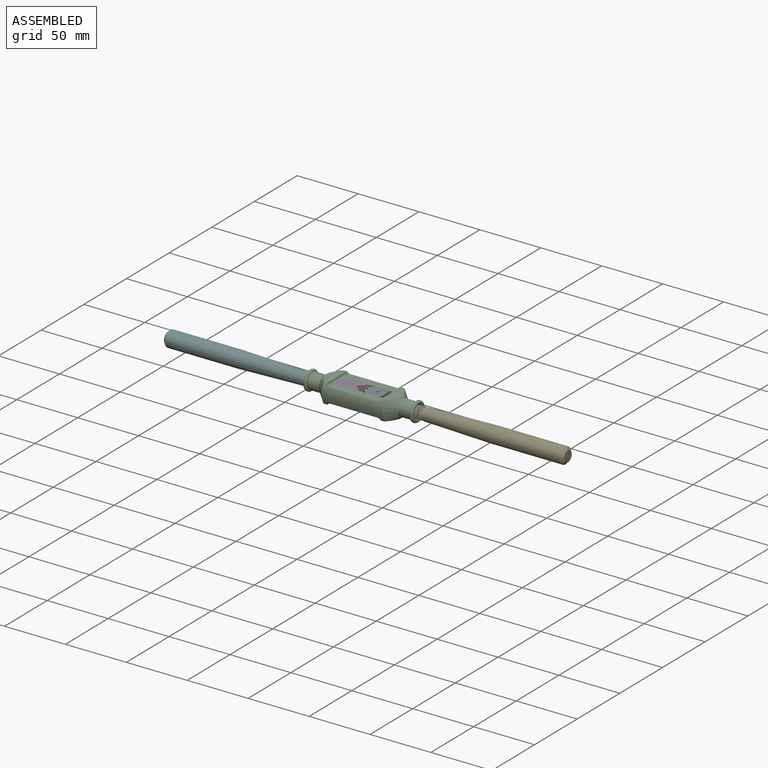
[diagram: assembled view]
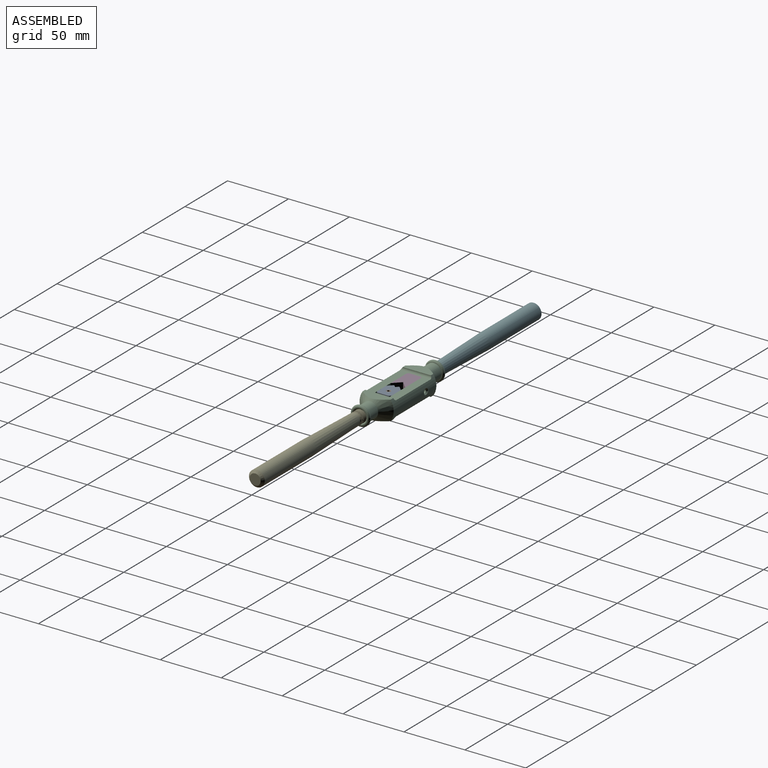
[diagram: assembled view, second angle]
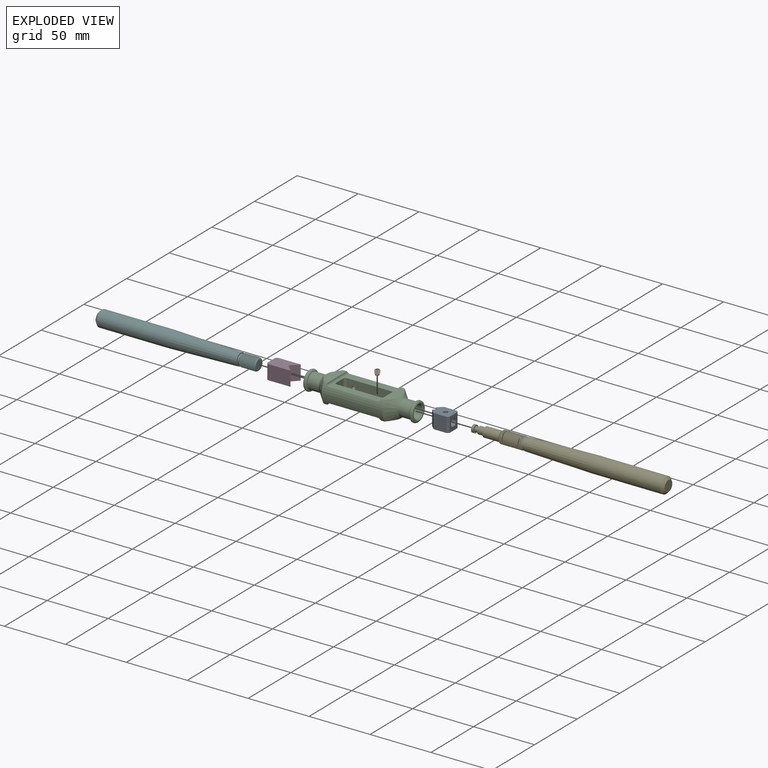
[diagram: exploded view]
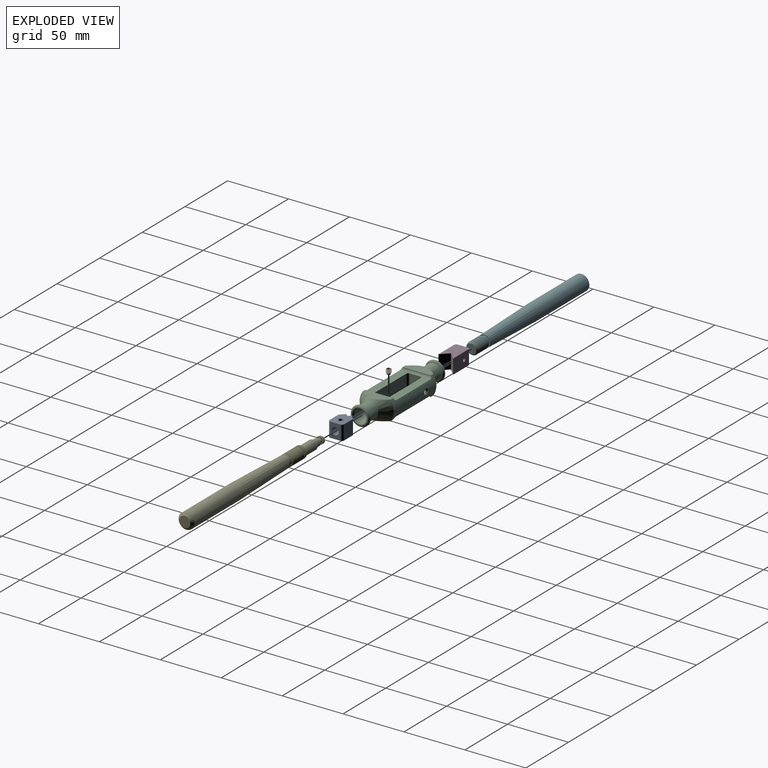
[diagram: exploded view, second angle]
ASSEMBLY  parts=6 mates=6
PART A: 15 faces, bbox 16.1x12x12 mm
  f0: cylinder r=3mm len=10mm, axis (1,0,0), area 178.4mm2, adj f4,f10,f11
  f1: plane 12x2.12mm, normal (-0.71,0.71,0), area 36mm2, adj f2,f7,f8,f9
  f2: plane 12x3.88mm, normal (-0.71,-0.71,0), area 65.8mm2, adj f1,f3,f8,f9
  f3: plane 12x10.24mm, normal (0,-1,0), area 122.9mm2, adj f2,f8,f9,f13
  f4: plane 12x8mm, normal (1,0,0), area 67.7mm2, adj f0,f8,f9,f13,f14
  f5: plane 12x10.24mm, normal (0,1,0), area 122.9mm2, adj f6,f8,f9,f14
  f6: plane 12x3.88mm, normal (-0.71,0.71,0), area 65.8mm2, adj f5,f7,f8,f9
  f7: plane 12x2.12mm, normal (-0.71,-0.71,0), area 36mm2, adj f1,f6,f8,f9
  f8: plane 16.12x12mm, normal (0,0,1), area 161.4mm2, adj f1,f2,f3,f4,f5,f6,f7,f12
  f9: plane 16.12x12mm, normal (0,0,-1), area 172.2mm2, adj f1,f2,f3,f4,f5,f6,f7,f13
  f10: cone r=0mm half-angle=59deg, axis (1,0,0), area 33mm2, adj f0
  f11: cylinder r=1.75mm len=3.5mm, axis (0,0,1), area 34.9mm2, adj f0,f12
  f12: cone r=1.75mm half-angle=45deg, axis (0,0,1), area 1.6mm2, adj f8,f11
  f13: cylinder r=2mm len=12mm, axis (0,0,1), area 37.7mm2, adj f3,f4,f8,f9
  f14: cylinder r=2mm len=12mm, axis (0,0,-1), area 37.7mm2, adj f4,f5,f8,f9
PART B: 17 faces, bbox 4x4x4.6 mm
  f0: plane 3.4x3.4mm, normal (-1,0,0), area 5.6mm2, adj f6,f10,f11,f12,f13,f14,f15
  f1: plane 3x3mm, normal (1,0,0), area 7.1mm2, adj f2
  f2: cylinder r=1.5mm len=3mm, axis (-1,0,0), area 8.5mm2, adj f1,f3
  f3: cone r=1.35mm half-angle=56.3deg, axis (1,0,0), area 1.6mm2, adj f2,f4
  f4: cone r=2mm half-angle=72.9deg, axis (-1,0,0), area 5.4mm2, adj f3,f5,f8,f9
  f5: cylinder r=2mm len=4mm, axis (-1,0,0), area -0.2mm2, adj f4,f6,f7,f8,f9
  f6: cone r=1.7mm half-angle=45deg, axis (1,0,0), area 3.5mm2, adj f0,f5,f7,f9
  f7: plane 0.29x0.23mm, normal (0,0,-1), area 0mm2, adj f5,f6,f8,f9
  f8: bspline ~4.62x4mm, area 29.2mm2, adj f4,f5,f7,f9
  f9: bspline ~4.62x4mm, area 29.9mm2, adj f4,f5,f6,f7,f8
  f10: plane 1.5x1mm, normal (0,-0.5,-0.87), area 1.7mm2, adj f0,f11,f15,f16
  f11: plane 1.5x1.15mm, normal (0,-1,0), area 1.7mm2, adj f0,f10,f12,f16
  f12: plane 1.5x1mm, normal (0,-0.5,0.86), area 1.7mm2, adj f0,f11,f13,f16
  f13: plane 1.5x1mm, normal (0,0.5,0.87), area 1.7mm2, adj f0,f12,f14,f16
  f14: plane 1.5x1.15mm, normal (0,1,0), area 1.7mm2, adj f0,f13,f15,f16
  f15: plane 1.5x1mm, normal (0,0.5,-0.86), area 1.7mm2, adj f0,f10,f14,f16
  f16: plane 2.31x2.01mm, normal (-1,0,0), area 3.5mm2, adj f10,f11,f12,f13,f14,f15
PART C: 41 faces, bbox 90x28x28 mm
  f0: plane 8x6mm, normal (-1,0,0), area 22.9mm2, adj f21,f25,f38,f39
  f1: cylinder r=14mm len=50mm, axis (1,0,0), area 632mm2, adj f2,f3,f9,f10,f11,f13,f25,f27
  f2: plane 22.99x9.01mm, normal (0,0,-1), area 155.6mm2, adj f1,f12,f13,f28
  f3: plane 22.99x9.01mm, normal (0,0,1), area 155.6mm2, adj f1,f11,f12,f32
  f4: plane 12x8mm, normal (1,0,0), area 96mm2, adj f28,f29,f37,f40
  f5: plane 36x12mm, normal (0,1,0), area 432mm2, adj f26,f30,f37,f38
  f6: plane 8x6mm, normal (-1,0,0), area 22.9mm2, adj f21,f32,f38,f39
  f7: plane 36x12mm, normal (0,-1,0), area 424.9mm2, adj f27,f31,f33,f39,f40
  f8: cone r=0mm half-angle=59deg, axis (1,0,0), area 33mm2, adj f20,f21
  f9: plane 22.99x9.01mm, normal (0,0,-1), area 155.6mm2, adj f1,f11,f12,f25
  f10: plane 22.99x9.01mm, normal (0,0,1), area 155.6mm2, adj f1,f12,f13,f29
  f11: cone r=14mm half-angle=45deg, axis (-1,0,0), area 409.4mm2, adj f1,f3,f9,f12,f17
  f12: cylinder r=14mm len=50mm, axis (1,0,0), area 651.7mm2, adj f2,f3,f9,f10,f11,f13,f25,f26
  f13: cone r=14mm half-angle=45deg, axis (1,0,0), area 409.5mm2, adj f1,f2,f10,f12,f18
  f14: plane 13x13mm, normal (-1,0,0), area 54.2mm2, adj f19,f23
  f15: plane 13x13mm, normal (1,0,0), area 19.6mm2, adj f16,f22
  f16: torus R=6.5mm, axis (1,0,0), area 220.7mm2, adj f15,f17
  f17: cylinder r=6.5mm len=13mm, axis (1,0,0), area 388mm2, adj f11,f16
  f18: cylinder r=6.5mm len=13mm, axis (1,0,0), area 388mm2, adj f13,f19
  f19: torus R=6.5mm, axis (1,0,0), area 220.7mm2, adj f14,f18
  f20: cylinder r=5mm len=19mm, axis (1,0,0), area 596.9mm2, adj f8,f22
  f21: cylinder r=4mm len=8mm, axis (1,0,0), area 110.6mm2, adj f0,f6,f8
  f22: cone r=5mm half-angle=45deg, axis (1,0,0), area 48.9mm2, adj f15,f20
  f23: cylinder r=5mm len=20mm, axis (-1,0,0), area 628.3mm2, adj f14,f24
  f24: cone r=0mm half-angle=59deg, axis (-1,0,0), area 91.6mm2, adj f23
  f25: cylinder r=2mm len=25.3mm, axis (0,1,0), area 77mm2, adj f0,f1,f9,f12,f26,f27
  f26: plane 40x8.65mm, normal (0,0,-1), area 267.7mm2, adj f5,f12,f25,f28,f37,f38
  f27: plane 40x8.65mm, normal (0,0,-1), area 267.7mm2, adj f1,f7,f25,f28,f39,f40
  f28: cylinder r=2mm len=25.3mm, axis (0,1,0), area 77mm2, adj f1,f2,f4,f12,f26,f27
  f29: cylinder r=2mm len=25.3mm, axis (0,1,0), area 77mm2, adj f1,f4,f10,f12,f30,f31
  f30: plane 40x8.65mm, normal (0,0,1), area 267.7mm2, adj f5,f12,f29,f32,f37,f38
  f31: plane 40x8.65mm, normal (0,0,1), area 267.7mm2, adj f1,f7,f29,f32,f39,f40
  f32: cylinder r=2mm len=25.3mm, axis (0,1,0), area 77mm2, adj f1,f3,f6,f12,f30,f31
  f33: cylinder r=1.5mm len=6.78mm, axis (0,1,0), area 63.9mm2, adj f7,f36
  f34: cylinder r=2.5mm len=5mm, axis (0,1,0), area 0.9mm2, adj f1,f36
  f35: cylinder r=2.5mm len=5mm, axis (0,1,0), area 0.9mm2, adj f1,f36
  f36: cone r=1.5mm half-angle=45deg, axis (0,1,0), area 17.8mm2, adj f33,f34,f35
  f37: cylinder r=2mm len=12mm, axis (0,0,1), area 37.7mm2, adj f4,f5,f26,f30
  f38: cylinder r=2mm len=12mm, axis (0,0,-1), area 37.7mm2, adj f0,f5,f6,f26,f30
  f39: cylinder r=2mm len=12mm, axis (0,0,1), area 37.7mm2, adj f0,f6,f7,f27,f31
  f40: cylinder r=2mm len=12mm, axis (0,0,-1), area 37.7mm2, adj f4,f7,f27,f31
PART D: 11 faces, bbox 20x12x12 mm
  f0: plane 12x6mm, normal (0.71,-0.71,0), area 101.8mm2, adj f1,f4,f5,f6
  f1: plane 18x12mm, normal (0,1,0), area 208.9mm2, adj f0,f5,f6,f7,f9
  f2: plane 12x8mm, normal (-1,0,0), area 96mm2, adj f5,f6,f9,f10
  f3: plane 18x12mm, normal (0,-1,0), area 216mm2, adj f4,f5,f6,f10
  f4: plane 12x6mm, normal (0.71,0.71,0), area 101.8mm2, adj f0,f3,f5,f6
  f5: plane 20x12mm, normal (0,0,1), area 202.3mm2, adj f0,f1,f2,f3,f4,f9,f10
  f6: plane 20x12mm, normal (0,0,-1), area 202.3mm2, adj f0,f1,f2,f3,f4,f9,f10
  f7: cylinder r=1.5mm len=5mm, axis (0,1,0), area 47.1mm2, adj f1,f8
  f8: cone r=0mm half-angle=59deg, axis (0,1,0), area 8.2mm2, adj f7
  f9: cylinder r=2mm len=12mm, axis (0,0,1), area 37.7mm2, adj f1,f2,f5,f6
  f10: cylinder r=2mm len=12mm, axis (0,0,-1), area 37.7mm2, adj f2,f3,f5,f6
PART E: 21 faces, bbox 161.8x13x13 mm
  f0: plane 8x8mm, normal (-1,0,0), area 22mm2, adj f1,f13
  f1: cylinder r=3mm len=6mm, axis (1,0,0), area 94.2mm2, adj f0,f2
  f2: plane 6x6mm, normal (-1,0,0), area 15.7mm2, adj f1,f3
  f3: cylinder r=2mm len=4mm, axis (1,0,0), area 37.7mm2, adj f2,f4
  f4: plane 6x6mm, normal (1,0,0), area 15.7mm2, adj f3,f5
  f5: cylinder r=3mm len=6mm, axis (1,0,0), area 37.7mm2, adj f4,f6
  f6: cone r=0mm half-angle=59deg, axis (1,0,0), area 33mm2, adj f5
  f7: plane 9x9mm, normal (1,0,0), area 63.6mm2, adj f14
  f8: cylinder r=6.5mm len=58mm, axis (1,0,0), area 2368.8mm2, adj f9,f14
  f9: cone r=5mm half-angle=1.5deg, axis (1,0,0), area 2023.9mm2, adj f8,f10
  f10: plane 10x10mm, normal (-1,0,0), area 24.1mm2, adj f9,f11
  f11: cylinder r=4.16mm len=8.33mm, axis (1,0,0), area 30.4mm2, adj f10,f15
  f12: cylinder r=5mm len=18mm, axis (1,0,0), area 68.4mm2, adj f15,f16,f19,f20
  f13: cylinder r=4mm len=13mm, axis (1,0,0), area 326.7mm2, adj f0,f17
  f14: cone r=4.5mm half-angle=45deg, axis (-1,0,0), area 97.7mm2, adj f7,f8
  f15: cone r=4mm half-angle=45deg, axis (-1,0,0), area 20.7mm2, adj f11,f12,f18,f19,f20
  f16: cone r=5mm half-angle=45deg, axis (1,0,0), area 2.6mm2, adj f12,f17,f19,f20
  f17: cone r=5mm half-angle=45deg, axis (1,0,0), area 21mm2, adj f13,f16,f19,f20
  f18: plane 0.7x0.52mm, normal (0,0,-1), area 0.1mm2, adj f15,f19,f20
  f19: bspline ~19.98x11.55mm, area 511.3mm2, adj f12,f15,f16,f17,f18,f20
  f20: bspline ~19.98x11.55mm, area 514.6mm2, adj f12,f15,f16,f17,f18,f19
PART F: 14 faces, bbox 131.5x13x13 mm
  f0: cylinder r=6.5mm len=58mm, axis (1,0,0), area 2368.8mm2, adj f1,f13
  f1: cone r=5mm half-angle=1.5deg, axis (1,0,0), area 2023.9mm2, adj f0,f2
  f2: plane 10x10mm, normal (-1,0,0), area 24.1mm2, adj f1,f3
  f3: cylinder r=4.16mm len=8.33mm, axis (1,0,0), area 30.4mm2, adj f2,f9
  f4: cylinder r=5mm len=12mm, axis (1,0,0), area 30mm2, adj f7,f8,f11,f12
  f5: plane 8x8mm, normal (-1,0,0), area 50.3mm2, adj f7
  f6: plane 9x9mm, normal (1,0,0), area 63.6mm2, adj f13
  f7: cone r=5mm half-angle=45deg, axis (1,0,0), area 23.6mm2, adj f4,f5,f11,f12
  f8: cone r=4mm half-angle=45deg, axis (-1,0,0), area 0.1mm2, adj f4,f9,f11
  f9: cone r=4mm half-angle=45deg, axis (-1,0,0), area 20.6mm2, adj f3,f8,f10,f12
  f10: plane 0.7x0.52mm, normal (0,0,-1), area 0.1mm2, adj f9,f11,f12
  f11: bspline ~13.98x11.55mm, area 343.2mm2, adj f4,f7,f8,f10,f12
  f12: bspline ~13.98x11.55mm, area 350.6mm2, adj f4,f7,f9,f10,f11
  f13: cone r=4.5mm half-angle=45deg, axis (-1,0,0), area 97.7mm2, adj f0,f6
PLACE A rot(axis=(0,0,1),0deg) t=(-2.6,0,0)mm
PLACE B rot(axis=(0.58,0.58,-0.58),120deg) t=(12.37,0,3.2)mm
PLACE C at identity fixed
PLACE D at identity
PLACE E rot(axis=(1,0,0),34.4deg) t=(17.4,0,0)mm
PLACE F rot(axis=(0,1,0),180deg) t=(-11,-44.25,0)mm
MATE fastened D.f2 <-> C.f1  axis (-1,0,0) through (-20,0,0)mm
MATE revolute A.f0 <-> E.f1  axis (1,0,0) through (7.4,0,0)mm
MATE fastened B.f2 <-> A.f11  axis (0,0,1) through (10.9,0,6)mm
MATE fastened F.f1 <-> C.f8  axis (1,0,0) through (-45,0,0)mm
MATE cylindrical E.f1 <-> C.f8  axis (-1,0,0) through (17.4,0,0)mm
MATE slider A.f0 <-> C.f8  axis (1,0,0) through (7.4,0,0)mm
